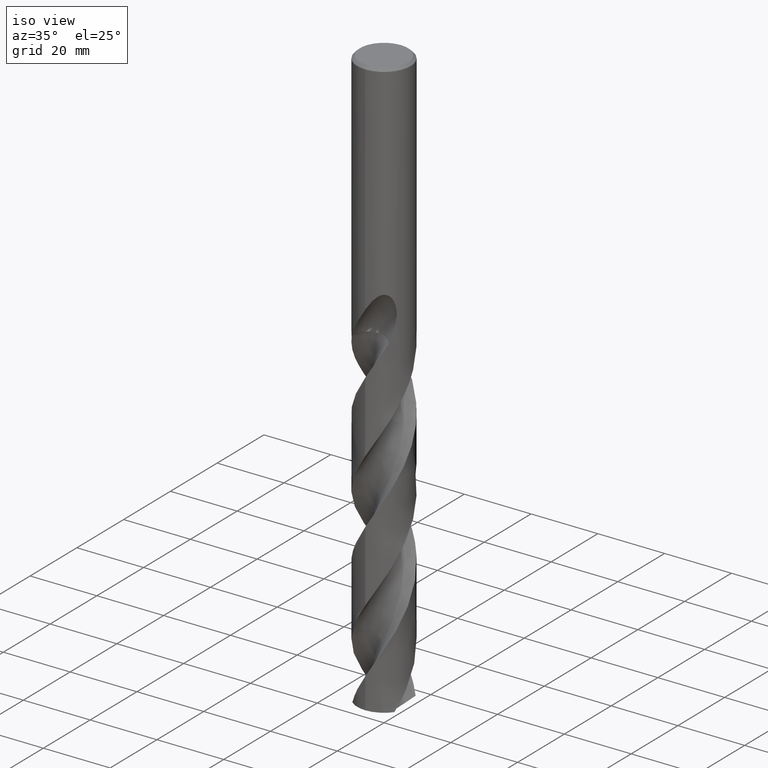
[diagram: clean part render]
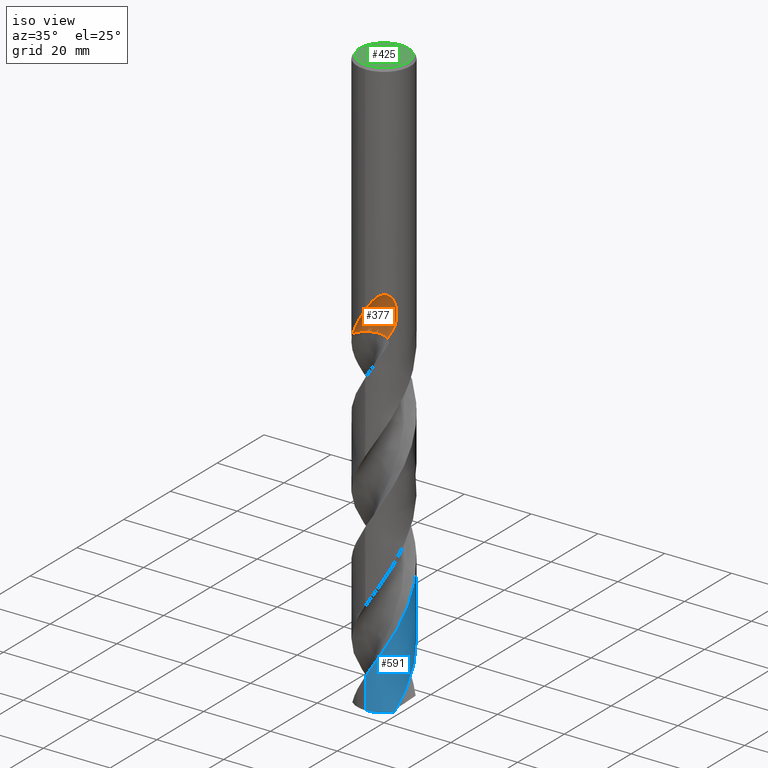
[diagram: same view with three faces highlighted in distinct colors, each labeled with its STEP entity id]
A machine part, iso view with three faces highlighted in distinct colors.
Their STEP definitions:

[orange] entity #377 — the highlighted face is a SurfaceOfRevolution surface.
#327=VERTEX_POINT('',#809);
#377=ADVANCED_FACE('',(#863),#864,.F.);
#511=EDGE_CURVE('',#593,#327,#1013,.T.);
#537=EDGE_CURVE('',#689,#713,#1041,.T.);
#593=VERTEX_POINT('',#1102);
#677=EDGE_CURVE('',#689,#327,#1191,.T.);
#685=EDGE_CURVE('',#713,#593,#1199,.T.);
#689=VERTEX_POINT('',#1203);
#713=VERTEX_POINT('',#1229);
#809=CARTESIAN_POINT('',(6.50913730642338,-4.65092802848285,-69.9243581719634));
#863=FACE_OUTER_BOUND('',#3213,.T.);
#864=SURFACE_OF_REVOLUTION('',#3214,#3215);
#1013=B_SPLINE_CURVE_WITH_KNOTS('',3,(#5379,#5380,#5381,#5382,#5383,#5384,#5385,#5386,#5387,#5388,#5389,#5390,#5391,#5392,#5393,#5394,#5395,#5396,#5397,#5398,#5399,#5400,#5401,#5402,#5403,#5404,#5405,#5406,#5407,#5408),.UNSPECIFIED.,.F.,.F.,(4,2,2,2,2,2,2,2,2,2,2,2,2,2,4),(0.0,3.91590281283359,6.05573409657608,7.99442629748274,10.2470388063598,12.9526719938617,15.2954417411845,16.357947869906,17.1345550297631,17.8694819377975,18.8018247316855,20.1659176186951,22.1051095659883,23.3737877571312,24.7070714168488),.UNSPECIFIED.);
#1041=B_SPLINE_CURVE_WITH_KNOTS('',3,(#5759,#5760,#5761,#5762,#5763,#5764,#5765,#5766,#5767,#5768,#5769,#5770,#5771,#5772,#5773,#5774),.UNSPECIFIED.,.F.,.F.,(4,2,2,2,2,2,2,4),(0.0,2.0836895667088,4.16726819539403,6.25068154252341,8.33394110976862,10.4171212506066,11.6681682764238,12.9192366316779),.UNSPECIFIED.);
#1102=CARTESIAN_POINT('',(2.43587506935927E-012,-7.99999999999999,-65.8011934870331));
#1191=CIRCLE('',#6832,34.7620791855138);
#1199=B_SPLINE_CURVE_WITH_KNOTS('',3,(#7005,#7006,#7007,#7008,#7009,#7010,#7011,#7012,#7013,#7014,#7015,#7016,#7017,#7018,#7019,#7020,#7021,#7022,#7023,#7024,#7025,#7026,#7027,#7028,#7029,#7030,#7031,#7032,#7033,#7034),.UNSPECIFIED.,.F.,.F.,(4,2,2,2,2,2,2,2,2,2,2,2,2,2,4),(0.0,3.91590281283359,6.05573409657608,7.99442629748274,10.2470388063598,12.9526719938617,15.2954417411845,16.357947869906,17.1345550297631,17.8694819377975,18.8018247316855,20.1659176186951,22.1051095659883,23.3737877571312,24.7070714168488),.UNSPECIFIED.);
#1203=CARTESIAN_POINT('',(3.77436116390051,-3.96243725254428,-74.3));
#1229=CARTESIAN_POINT('',(-5.09533746900463,-6.1674578293619,-74.3));
#3213=EDGE_LOOP('',(#7437,#7438,#7439,#7440));
#3214=(B_SPLINE_CURVE(3,(#7442,#7443,#7444,#7445,#7446,#7447,#7448,#7449,#7450),.UNSPECIFIED.,.F.,.F.)B_SPLINE_CURVE_WITH_KNOTS((4,1,3,1,4),(-2.85636795280894,-2.55358031761993,-2.25079268243092,-1.94800504724191,-1.64521741205289),.UNSPECIFIED.)RATIONAL_B_SPLINE_CURVE((1.09168035202335,1.03056011734112,0.969439882658882,1.03056011734112,1.09168035202335,1.03056011734112,0.969439882658882,1.03056011734112,1.09168035202335))BOUNDED_CURVE()REPRESENTATION_ITEM('')GEOMETRIC_REPRESENTATION_ITEM()CURVE());
#3215=AXIS1_PLACEMENT('',#7457,#7458);
#5379=CARTESIAN_POINT('',(-5.09533746900463,-6.1674578293619,-74.3));
#5380=CARTESIAN_POINT('',(-4.56781300680808,-6.60328004856703,-73.1884301763902));
#5381=CARTESIAN_POINT('',(-3.96147717069402,-6.99059414093797,-72.1519049479666));
#5382=CARTESIAN_POINT('',(-2.90421070218767,-7.46547307658953,-70.4201014509066));
#5383=CARTESIAN_POINT('',(-2.52357567905521,-7.60214076383474,-69.8104798396806));
#5384=CARTESIAN_POINT('',(-1.78663426127276,-7.80641246493782,-68.6302760887285));
#5385=CARTESIAN_POINT('',(-1.43360700960122,-7.8785812952792,-68.0651771779032));
#5386=CARTESIAN_POINT('',(-0.66939761638888,-7.98271463327913,-66.8471682891758));
#5387=CARTESIAN_POINT('',(-0.251818952600852,-8.0071311229172,-66.1847063849591));
#5388=CARTESIAN_POINT('',(0.675477540706896,-7.98748343496672,-64.767614962988));
#5389=CARTESIAN_POINT('',(1.22529818168479,-7.92706306859737,-63.9612757067075));
#5390=CARTESIAN_POINT('',(2.28510817287336,-7.68329109102345,-62.6324744414043));
#5391=CARTESIAN_POINT('',(2.87106821308121,-7.49776193190795,-61.9845420802108));
#5392=CARTESIAN_POINT('',(3.75814303339007,-7.06900746724023,-61.377511312445));
#5393=CARTESIAN_POINT('',(4.0519265721904,-6.90705827610741,-61.2274173351229));
#5394=CARTESIAN_POINT('',(4.56671142469977,-6.57360084481971,-61.112136804995));
#5395=CARTESIAN_POINT('',(4.77785754992476,-6.42173920744754,-61.1100020707401));
#5396=CARTESIAN_POINT('',(5.17113183649068,-6.1089352431671,-61.2109696484492));
#5397=CARTESIAN_POINT('',(5.34313168535859,-5.95785593701404,-61.3056222911061));
#5398=CARTESIAN_POINT('',(5.69315463373453,-5.62677348313845,-61.601767405673));
#5399=CARTESIAN_POINT('',(5.85509159657868,-5.45519699647588,-61.8204157500394));
#5400=CARTESIAN_POINT('',(6.18679112368952,-5.08054745049944,-62.4191394066163));
#5401=CARTESIAN_POINT('',(6.34533440279514,-4.87652583157165,-62.8632166951698));
#5402=CARTESIAN_POINT('',(6.64345502896667,-4.46687448665409,-64.1056738234784));
#5403=CARTESIAN_POINT('',(6.75122285237993,-4.29239836170946,-64.990528653663));
#5404=CARTESIAN_POINT('',(6.80451842235327,-4.20714986738576,-66.6280143733146));
#5405=CARTESIAN_POINT('',(6.79196220113431,-4.22796907317364,-67.2800385825896));
#5406=CARTESIAN_POINT('',(6.70335655751583,-4.36716841121042,-68.6033173532593));
#5407=CARTESIAN_POINT('',(6.62425545031343,-4.48981613845744,-69.2695915934735));
#5408=CARTESIAN_POINT('',(6.50913730642338,-4.65092802848284,-69.9243581719634));
#5759=CARTESIAN_POINT('',(3.77436116390052,-3.96243725254428,-74.3));
#5760=CARTESIAN_POINT('',(3.28325834864442,-3.47127938767134,-74.3));
#5761=CARTESIAN_POINT('',(2.70091602511993,-3.0807383603764,-74.3));
#5762=CARTESIAN_POINT('',(1.419343980209,-2.54488406185063,-74.3));
#5763=CARTESIAN_POINT('',(0.732370640255498,-2.40467993224093,-74.3));
#5764=CARTESIAN_POINT('',(-0.656593623707864,-2.3955077267827,-74.3));
#5765=CARTESIAN_POINT('',(-1.34530366756504,-2.52660606080058,-74.3));
#5766=CARTESIAN_POINT('',(-2.63365296637478,-3.04541370223928,-74.3));
#5767=CARTESIAN_POINT('',(-3.22097847844025,-3.42814303030848,-74.3));
#5768=CARTESIAN_POINT('',(-4.21584059978022,-4.39718172107111,-74.3));
#5769=CARTESIAN_POINT('',(-4.61386873028476,-4.97421506276283,-74.3));
#5770=CARTESIAN_POINT('',(-5.05599600915316,-5.99389366862002,-74.3));
#5771=CARTESIAN_POINT('',(-5.17643840928698,-6.39463200964358,-74.3));
#5772=CARTESIAN_POINT('',(-5.32148778578125,-7.21595781968526,-74.3));
#5773=CARTESIAN_POINT('',(-5.34559358198902,-7.63371686652313,-74.3));
#5774=CARTESIAN_POINT('',(-5.32078838992873,-8.05,-74.3));
#6832=AXIS2_PLACEMENT_3D('',#7820,#7821,#7822);
#7005=CARTESIAN_POINT('',(-5.09533746900463,-6.1674578293619,-74.3));
#7006=CARTESIAN_POINT('',(-4.56781300680808,-6.60328004856703,-73.1884301763902));
#7007=CARTESIAN_POINT('',(-3.96147717069402,-6.99059414093797,-72.1519049479666));
#7008=CARTESIAN_POINT('',(-2.90421070218767,-7.46547307658953,-70.4201014509066));
#7009=CARTESIAN_POINT('',(-2.52357567905521,-7.60214076383474,-69.8104798396806));
#7010=CARTESIAN_POINT('',(-1.78663426127276,-7.80641246493782,-68.6302760887285));
#7011=CARTESIAN_POINT('',(-1.43360700960122,-7.8785812952792,-68.0651771779032));
#7012=CARTESIAN_POINT('',(-0.66939761638888,-7.98271463327913,-66.8471682891758));
#7013=CARTESIAN_POINT('',(-0.251818952600852,-8.0071311229172,-66.1847063849591));
#7014=CARTESIAN_POINT('',(0.675477540706896,-7.98748343496672,-64.767614962988));
#7015=CARTESIAN_POINT('',(1.22529818168479,-7.92706306859737,-63.9612757067075));
#7016=CARTESIAN_POINT('',(2.28510817287336,-7.68329109102345,-62.6324744414043));
#7017=CARTESIAN_POINT('',(2.87106821308121,-7.49776193190795,-61.9845420802108));
#7018=CARTESIAN_POINT('',(3.75814303339007,-7.06900746724023,-61.377511312445));
#7019=CARTESIAN_POINT('',(4.0519265721904,-6.90705827610741,-61.2274173351229));
#7020=CARTESIAN_POINT('',(4.56671142469977,-6.57360084481971,-61.112136804995));
#7021=CARTESIAN_POINT('',(4.77785754992476,-6.42173920744754,-61.1100020707401));
#7022=CARTESIAN_POINT('',(5.17113183649068,-6.1089352431671,-61.2109696484492));
#7023=CARTESIAN_POINT('',(5.34313168535859,-5.95785593701404,-61.3056222911061));
#7024=CARTESIAN_POINT('',(5.69315463373453,-5.62677348313845,-61.601767405673));
#7025=CARTESIAN_POINT('',(5.85509159657868,-5.45519699647588,-61.8204157500394));
#7026=CARTESIAN_POINT('',(6.18679112368952,-5.08054745049944,-62.4191394066163));
#7027=CARTESIAN_POINT('',(6.34533440279514,-4.87652583157165,-62.8632166951698));
#7028=CARTESIAN_POINT('',(6.64345502896667,-4.46687448665409,-64.1056738234784));
#7029=CARTESIAN_POINT('',(6.75122285237993,-4.29239836170946,-64.990528653663));
#7030=CARTESIAN_POINT('',(6.80451842235327,-4.20714986738576,-66.6280143733146));
#7031=CARTESIAN_POINT('',(6.79196220113431,-4.22796907317364,-67.2800385825896));
#7032=CARTESIAN_POINT('',(6.70335655751583,-4.36716841121042,-68.6033173532593));
#7033=CARTESIAN_POINT('',(6.62425545031343,-4.48981613845744,-69.2695915934735));
#7034=CARTESIAN_POINT('',(6.50913730642338,-4.65092802848284,-69.9243581719634));
#7437=ORIENTED_EDGE('',*,*,#537,.F.);
#7438=ORIENTED_EDGE('',*,*,#677,.T.);
#7439=ORIENTED_EDGE('',*,*,#511,.F.);
#7440=ORIENTED_EDGE('',*,*,#685,.F.);
#7442=CARTESIAN_POINT('',(3.77123616390052,-3.96209716609948,-74.305));
#7443=CARTESIAN_POINT('',(3.0325590969274,-3.22341105216108,-74.305));
#7444=CARTESIAN_POINT('',(1.11178561019235,-2.17380832457056,-74.305));
#7445=CARTESIAN_POINT('',(-1.06492212838375,-2.40398237595941,-74.305));
#7446=CARTESIAN_POINT('',(-2.03087531204552,-2.80177054970407,-74.305));
#7447=CARTESIAN_POINT('',(-2.99682849570729,-3.19955872344874,-74.305));
#7448=CARTESIAN_POINT('',(-4.70439138833317,-4.5689621120954,-74.305));
#7449=CARTESIAN_POINT('',(-5.32902609804488,-6.66678673596966,-74.305));
#7450=CARTESIAN_POINT('',(-5.33331154753289,-7.71143146941741,-74.305));
#7457=CARTESIAN_POINT('',(2.71190016280487,-38.66666665,-75.999937601753));
#7458=DIRECTION('',(-0.847998304005088,0.0,0.52999894000318));
#7820=CARTESIAN_POINT('',(2.71190016280487,-38.66666665,-75.999937601753));
#7821=DIRECTION('',(0.847998304005088,0.0,-0.52999894000318));
#7822=DIRECTION('',(0.0535598123557514,0.994880693119272,0.0856956997692023));

[blue] entity #591 — the highlighted conical surface has half-angle 0 deg.
#265=VERTEX_POINT('',#741);
#283=VERTEX_POINT('',#764);
#323=EDGE_CURVE('',#557,#265,#805,.T.);
#395=VERTEX_POINT('',#883);
#455=EDGE_CURVE('',#283,#265,#950,.T.);
#519=EDGE_CURVE('',#395,#557,#1022,.T.);
#557=VERTEX_POINT('',#1063);
#591=ADVANCED_FACE('',(#1099),#1100,.T.);
#651=EDGE_CURVE('',#283,#703,#1164,.T.);
#687=EDGE_CURVE('',#395,#703,#1201,.T.);
#703=VERTEX_POINT('',#1217);
#741=CARTESIAN_POINT('',(3.02562586892003E-012,-7.99999076891851,-165.041269161609));
#764=CARTESIAN_POINT('',(5.01366598669618E-014,7.99995034341639,-124.628081171944));
#805=LINE('',#3103,#3104);
#883=CARTESIAN_POINT('',(6.4524154961979,-4.7293058966856,-174.26953873476));
#950=B_SPLINE_CURVE_WITH_KNOTS('',3,(#4583,#4584,#4585,#4586,#4587,#4588,#4589,#4590,#4591,#4592,#4593,#4594,#4595,#4596,#4597,#4598,#4599,#4600,#4601,#4602,#4603,#4604,#4605,#4606,#4607,#4608,#4609,#4610,#4611,#4612,#4613,#4614,#4615,#4616,#4617,#4618,#4619,#4620,#4621,#4622,#4623,#4624,#4625,#4626,#4627,#4628,#4629,#4630,#4631,#4632,#4633,#4634,#4635,#4636,#4637,#4638,#4639,#4640,#4641,#4642,#4643,#4644,#4645,#4646,#4647,#4648,#4649,#4650,#4651,#4652,#4653,#4654,#4655,#4656,#4657,#4658,#4659,#4660,#4661,#4662,#4663,#4664,#4665,#4666,#4667,#4668,#4669,#4670,#4671,#4672,#4673,#4674,#4675,#4676,#4677,#4678,#4679,#4680,#4681,#4682,#4683,#4684,#4685,#4686,#4687,#4688,#4689,#4690,#4691,#4692,#4693,#4694,#4695,#4696,#4697,#4698,#4699,#4700,#4701,#4702,#4703,#4704,#4705,#4706,#4707,#4708,#4709,#4710,#4711,#4712,#4713,#4714,#4715,#4716,#4717,#4718,#4719,#4720,#4721,#4722,#4723,#4724,#4725,#4726,#4727,#4728),.UNSPECIFIED.,.F.,.F.,(4,2,2,2,2,2,2,2,2,2,2,2,2,2,2,2,2,2,2,2,2,2,2,2,2,2,2,2,2,2,2,2,2,2,2,2,2,2,2,2,2,2,2,2,2,2,2,2,2,2,2,2,2,2,2,2,2,2,2,2,2,2,2,2,2,2,2,2,2,2,2,2,4),(0.0,0.396364840128986,1.6889252362145,2.00397487255824,2.17424251064517,2.30588410762312,2.47757412513264,2.78553548546604,2.98803412804092,3.32603751689064,4.35719727056097,4.93410546594319,5.50924568199279,6.1194794832249,9.23315649832654,9.65617969121381,13.7257564065784,16.4285237405866,17.7895942104936,19.1452457843884,21.5964018847394,22.9475115698178,25.4669970790595,26.8121031105491,29.492633314876,30.7428072521989,33.4326285693044,34.1393211857721,36.6636143412875,38.0085997697514,40.6893611332032,41.9262379937883,44.6148549862256,45.3214705404702,47.8135670745552,49.1604985847409,51.8394495762727,53.1019833855767,55.7894977087622,56.4960156231603,58.9435575644471,60.293020373924,62.8899113667854,64.2292189231259,66.914063538105,67.4941765960054,69.6317616897498,70.3122858422147,71.6538645473942,74.3369548942472,74.9301807130068,77.0689315097165,77.7493478540563,79.0910113903947,81.7723056672906,82.9763852442322,85.6648481548377,86.3710840494555,88.9125017042148,90.2553225908161,92.9358036975654,94.1469183034304,96.8340297205254,97.5401780187552,99.7134459788152,101.63431864337,103.314570563173,106.263970110825,107.371672785573,109.308050335833,110.762400398034,112.946745369295,115.130519048277),.UNSPECIFIED.);
#1022=CIRCLE('',#5424,8.0);
#1063=CARTESIAN_POINT('',(9.80343973248276E-016,-8.0,-174.26953873476));
#1099=FACE_OUTER_BOUND('',#5949,.T.);
#1100=CONICAL_SURFACE('',#5950,7.99995,1.00030470546688E-006);
#1164=LINE('',#6604,#6605);
#1201=B_SPLINE_CURVE_WITH_KNOTS('',3,(#7037,#7038,#7039,#7040,#7041,#7042,#7043,#7044,#7045,#7046,#7047,#7048,#7049,#7050,#7051,#7052,#7053,#7054,#7055,#7056,#7057,#7058,#7059,#7060,#7061,#7062,#7063,#7064,#7065,#7066,#7067,#7068,#7069,#7070,#7071,#7072,#7073,#7074,#7075,#7076,#7077,#7078,#7079,#7080,#7081,#7082,#7083,#7084,#7085,#7086,#7087,#7088,#7089,#7090,#7091,#7092,#7093,#7094,#7095,#7096,#7097,#7098,#7099,#7100,#7101,#7102,#7103,#7104,#7105,#7106,#7107,#7108,#7109,#7110,#7111,#7112,#7113,#7114,#7115,#7116,#7117,#7118,#7119,#7120,#7121,#7122,#7123,#7124,#7125,#7126,#7127,#7128,#7129,#7130,#7131,#7132,#7133,#7134,#7135,#7136,#7137,#7138,#7139,#7140,#7141,#7142,#7143,#7144,#7145,#7146,#7147,#7148,#7149,#7150,#7151,#7152,#7153,#7154,#7155,#7156,#7157,#7158,#7159,#7160,#7161,#7162,#7163,#7164,#7165,#7166,#7167,#7168,#7169,#7170,#7171,#7172,#7173,#7174,#7175,#7176,#7177,#7178,#7179,#7180,#7181,#7182,#7183,#7184,#7185,#7186,#7187,#7188,#7189,#7190,#7191,#7192,#7193,#7194,#7195,#7196),.UNSPECIFIED.,.F.,.F.,(4,2,2,2,2,2,2,2,2,2,2,2,2,2,2,2,2,2,2,2,2,2,2,2,2,2,2,2,2,2,2,2,2,2,2,2,2,2,2,2,2,2,2,2,2,2,2,2,2,2,2,2,2,2,2,2,2,2,2,2,2,2,2,2,2,2,2,2,2,2,2,2,2,2,2,2,2,2,2,4),(0.0,1.79288026446482,4.33577615326237,5.72819630634083,6.59756452608658,7.49901169922463,10.1356059848104,11.5219639803182,13.4736717277284,16.2559084691059,17.6007519430154,18.9903062756799,22.1697415352793,22.526246318934,24.3454041609088,25.365049139052,26.7540921899424,28.6614135010113,30.5707827137037,32.4791854809951,33.4350862038033,34.2495951726714,37.6123831448873,37.6716397426594,39.8011765899904,40.8291512252595,42.0035791764091,43.9100209147848,44.8651602538496,45.8149906842246,47.7212056420198,48.6762287001318,49.6259598567216,51.5318772274883,52.4868720640669,53.4367494361388,55.3425873922453,56.2975928746214,57.2476155441298,58.923862952868,59.9671249842955,61.1093899839554,64.1261550862519,65.010172058349,66.6825242809709,67.7823406224752,68.6575876963279,71.4388406276834,72.5567140168389,74.4626140574003,75.4175267509742,76.3672565942204,78.2729678381065,79.2278974660539,80.1778023662613,82.0835128202812,83.0385036884594,83.9886134916779,85.8945131401931,86.8495833045001,87.7998145123193,91.0849072840745,91.2897559114561,94.0855805715642,96.334970874958,98.0728292419665,99.4717153797586,101.485604902634,103.282267587602,106.642861963175,111.607680777872,113.019764300618,113.987173385473,114.544614757626,114.991022611521,115.250860049801,115.491134439478,115.806649395218,116.541432665493,117.91297923462),.UNSPECIFIED.);
#1217=CARTESIAN_POINT('',(2.75051047590584E-010,7.99997164817969,-145.926354754771));
#3103=CARTESIAN_POINT('',(9.80337850216507E-016,-7.99995,-124.28476936738));
#3104=VECTOR('',#7371,1.0);
#4583=CARTESIAN_POINT('',(5.5605480230186,-5.75140902507614,-74.305));
#4584=CARTESIAN_POINT('',(5.51284781696838,-5.79752645466486,-74.4192540754287));
#4585=CARTESIAN_POINT('',(5.46442224983083,-5.84319943962831,-74.5335302035747));
#4586=CARTESIAN_POINT('',(5.25433974451992,-6.03639264039253,-75.0199796965601));
#4587=CARTESIAN_POINT('',(5.08874975570723,-6.17699683276603,-75.3798626272565));
#4588=CARTESIAN_POINT('',(4.86425763582548,-6.35141922652426,-75.8356996325223));
#4589=CARTESIAN_POINT('',(4.81973794406746,-6.38527475501142,-75.9247459398642));
#4590=CARTESIAN_POINT('',(4.75002024890972,-6.43713174645482,-76.0622744008603));
#4591=CARTESIAN_POINT('',(4.72541528117367,-6.45521618859355,-76.1104549378464));
#4592=CARTESIAN_POINT('',(4.68150528986153,-6.48710246956705,-76.1958665082032));
#4593=CARTESIAN_POINT('',(4.66227706748511,-6.50093578208313,-76.2330769950212));
#4594=CARTESIAN_POINT('',(4.61777154838819,-6.53265452485234,-76.3188043610663));
#4595=CARTESIAN_POINT('',(4.59245340447115,-6.55047827936271,-76.3672787300193));
#4596=CARTESIAN_POINT('',(4.52135313332328,-6.59991610353792,-76.5027086082579));
#4597=CARTESIAN_POINT('',(4.47536015257851,-6.63119005062669,-76.5895117698738));
#4598=CARTESIAN_POINT('',(4.3985891985828,-6.68222937884893,-76.733539864156));
#4599=CARTESIAN_POINT('',(4.36787769524598,-6.70234761701732,-76.790965548924));
#4600=CARTESIAN_POINT('',(4.28457805593145,-6.75608437080903,-76.9466128813834));
#4601=CARTESIAN_POINT('',(4.23226543237892,-6.78897383571983,-77.0441212709871));
#4602=CARTESIAN_POINT('',(4.01956440740735,-6.91930986925541,-77.4394445537935));
#4603=CARTESIAN_POINT('',(3.85718781478951,-7.0110540560221,-77.7387367659995));
#4604=CARTESIAN_POINT('',(3.60090066768687,-7.14441880249601,-78.2048273198961));
#4605=CARTESIAN_POINT('',(3.50810089754314,-7.19043848087967,-78.3723028829909));
#4606=CARTESIAN_POINT('',(3.32118983148065,-7.27865477612401,-78.7064922379283));
#4607=CARTESIAN_POINT('',(3.22695762276601,-7.32092205065111,-78.8734326570244));
#4608=CARTESIAN_POINT('',(3.03094611232734,-7.4043142611879,-79.2171311239335));
#4609=CARTESIAN_POINT('',(2.92908988936161,-7.44519826421327,-79.393816356564));
#4610=CARTESIAN_POINT('',(2.30206648085502,-7.68199537706052,-80.4723293104213));
#4611=CARTESIAN_POINT('',(1.75848792437019,-7.82434290422219,-81.367452135331));
#4612=CARTESIAN_POINT('',(1.12914723909622,-7.92018647522073,-82.3919911705235));
#4613=CARTESIAN_POINT('',(1.05372806233417,-7.93057260733814,-82.5145792234645));
#4614=CARTESIAN_POINT('',(0.251454128115897,-8.02941334056035,-83.8160794056571));
#4615=CARTESIAN_POINT('',(-0.484512858078041,-8.01879677941626,-84.9877678337816));
#4616=CARTESIAN_POINT('',(-1.69030891788395,-7.83443960954508,-86.9487891451228));
#4617=CARTESIAN_POINT('',(-2.16370713981368,-7.7171083345384,-87.7297675974405));
#4618=CARTESIAN_POINT('',(-2.85488650297844,-7.47718544382351,-88.9067011945221));
#4619=CARTESIAN_POINT('',(-3.0826088844176,-7.38622062655594,-89.3006715272075));
#4620=CARTESIAN_POINT('',(-3.52817776700053,-7.18402598595375,-90.0873465426665));
#4621=CARTESIAN_POINT('',(-3.74576698205561,-7.07301153767781,-90.4794745243644));
#4622=CARTESIAN_POINT('',(-4.34154936036629,-6.7338312695149,-91.5818533628831));
#4623=CARTESIAN_POINT('',(-4.70646986889829,-6.48403782378337,-92.2908607026262));
#4624=CARTESIAN_POINT('',(-5.23769844689276,-6.05181323336589,-93.3919043321043));
#4625=CARTESIAN_POINT('',(-5.41933688921216,-5.88971122652719,-93.7827770976487));
#4626=CARTESIAN_POINT('',(-5.91767517242136,-5.40237934262374,-94.903724051133));
#4627=CARTESIAN_POINT('',(-6.21453816673239,-5.05808563354568,-95.6324176606162));
#4628=CARTESIAN_POINT('',(-6.62269361859108,-4.49415142410318,-96.7515383285642));
#4629=CARTESIAN_POINT('',(-6.75574224446968,-4.29154855282225,-97.1407012436537));
#4630=CARTESIAN_POINT('',(-7.12576772789545,-3.66813834536784,-98.3066212452938));
#4631=CARTESIAN_POINT('',(-7.33412309759147,-3.23150322083229,-99.0816614550725));
#4632=CARTESIAN_POINT('',(-7.58007399176533,-2.56749178209516,-100.219969774556));
#4633=CARTESIAN_POINT('',(-7.64933128476196,-2.35313315147344,-100.581807188275));
#4634=CARTESIAN_POINT('',(-7.83879006861508,-1.66938191454745,-101.722999076193));
#4635=CARTESIAN_POINT('',(-7.92549835542677,-1.19170069922153,-102.50059024185));
#4636=CARTESIAN_POINT('',(-7.97973115668838,-0.582208500664761,-103.484218447745));
#4637=CARTESIAN_POINT('',(-7.9879844851845,-0.455164327791988,-103.688826577471));
#4638=CARTESIAN_POINT('',(-8.01184385714521,0.126270569339463,-104.624654554951));
#4639=CARTESIAN_POINT('',(-7.99172847112145,0.581366115770571,-105.354832592783));
#4640=CARTESIAN_POINT('',(-7.90177723547586,1.2726132605373,-106.475459456891));
#4641=CARTESIAN_POINT('',(-7.8596144220525,1.51131199756138,-106.8646444414));
#4642=CARTESIAN_POINT('',(-7.70121331059336,2.21886804416057,-108.030748211982));
#4643=CARTESIAN_POINT('',(-7.55327360215441,2.67960717701273,-108.805940574425));
#4644=CARTESIAN_POINT('',(-7.27761828316181,3.32939999848544,-109.940606677778));
#4645=CARTESIAN_POINT('',(-7.18207184295146,3.5307853675632,-110.29864225695));
#4646=CARTESIAN_POINT('',(-6.8526187977384,4.15633135276245,-111.435780072029));
#4647=CARTESIAN_POINT('',(-6.58848862820094,4.56349606711205,-112.213139489782));
#4648=CARTESIAN_POINT('',(-6.21040242567926,5.04441609626446,-113.19652833141));
#4649=CARTESIAN_POINT('',(-6.12934982435212,5.14259638313354,-113.401138736755));
#4650=CARTESIAN_POINT('',(-5.75203253401615,5.57805311427762,-114.327743165264));
#4651=CARTESIAN_POINT('',(-5.42998738607319,5.89202074901117,-115.048750438669));
#4652=CARTESIAN_POINT('',(-4.89587055501491,6.33154156037681,-116.160771131014));
#4653=CARTESIAN_POINT('',(-4.7015820309396,6.47711908229234,-116.550561549495));
#4654=CARTESIAN_POINT('',(-4.10205141505803,6.885139449149,-117.7168513541));
#4655=CARTESIAN_POINT('',(-3.67927918788621,7.12004537197204,-118.491645678848));
#4656=CARTESIAN_POINT('',(-3.02981205834922,7.40750445704382,-119.633369080842));
#4657=CARTESIAN_POINT('',(-2.81798351480715,7.4906488816237,-119.998858807144));
#4658=CARTESIAN_POINT('',(-2.14517519295429,7.7221583518571,-121.143258987747));
#4659=CARTESIAN_POINT('',(-1.67396263265294,7.83782843091579,-121.920415157332));
#4660=CARTESIAN_POINT('',(-1.06921304298647,7.92919736131189,-122.903589823445));
#4661=CARTESIAN_POINT('',(-0.942909582510771,7.94520634388572,-123.108195801619));
#4662=CARTESIAN_POINT('',(-0.377651220927743,8.00318710610268,-124.021989447264));
#4663=CARTESIAN_POINT('',(0.0640184470550656,8.01184306939127,-124.730263134268));
#4664=CARTESIAN_POINT('',(0.746875211317738,7.9687222802964,-125.830272137334));
#4665=CARTESIAN_POINT('',(0.988707561004293,7.94234201481639,-126.22083695269));
#4666=CARTESIAN_POINT('',(1.6912518719529,7.83312266096925,-127.364236075314));
#4667=CARTESIAN_POINT('',(2.14644469488083,7.72082023332259,-128.115544046031));
#4668=CARTESIAN_POINT('',(2.81763365541447,7.4912267312063,-129.25590420956));
#4669=CARTESIAN_POINT('',(3.04231500267936,7.40282554884442,-129.643606310392));
#4670=CARTESIAN_POINT('',(3.70427549320407,7.10715242699059,-130.809628965931));
#4671=CARTESIAN_POINT('',(4.12721412593053,6.8701941549787,-131.586159241167));
#4672=CARTESIAN_POINT('',(4.61241786661689,6.53726738259335,-132.532077530203));
#4673=CARTESIAN_POINT('',(4.69745039651734,6.47643593793807,-132.700097068316));
#4674=CARTESIAN_POINT('',(5.09009335058722,6.18374259358743,-133.487549548376));
#4675=CARTESIAN_POINT('',(5.38190072194309,5.93151575097637,-134.106528270316));
#4676=CARTESIAN_POINT('',(5.741145471588,5.57258086981461,-134.923107978253));
#4677=CARTESIAN_POINT('',(5.82589923303782,5.48391420354618,-135.120261264495));
#4678=CARTESIAN_POINT('',(6.07159797823741,5.21474307341315,-135.706152211746));
#4679=CARTESIAN_POINT('',(6.22640081232779,5.02889172350294,-136.094539688829));
#4680=CARTESIAN_POINT('',(6.66479228575774,4.45125374413043,-137.260832954119));
#4681=CARTESIAN_POINT('',(6.92160413993277,4.04038437485214,-138.036966625968));
#4682=CARTESIAN_POINT('',(7.18800028228998,3.51333470847126,-138.986274864805));
#4683=CARTESIAN_POINT('',(7.23431236854887,3.4169566793859,-139.158107956708));
#4684=CARTESIAN_POINT('',(7.4386257260728,2.96898483810437,-139.949767076565));
#4685=CARTESIAN_POINT('',(7.5730222944281,2.60717619140266,-140.569137020159));
#4686=CARTESIAN_POINT('',(7.71510182381443,2.11936662666761,-141.386096051747));
#4687=CARTESIAN_POINT('',(7.74668438171994,2.00084983907883,-141.583235710679));
#4688=CARTESIAN_POINT('',(7.83241390424733,1.64659163509505,-142.16917257646));
#4689=CARTESIAN_POINT('',(7.87859877870559,1.40912173799898,-142.557612048814));
#4690=CARTESIAN_POINT('',(7.98461720908134,0.691987258331606,-143.723518128525));
#4691=CARTESIAN_POINT('',(8.01184546419075,0.208503453864727,-144.499233248799));
#4692=CARTESIAN_POINT('',(7.9878097196188,-0.491476346721196,-145.625132644854));
#4693=CARTESIAN_POINT('',(7.97153752933594,-0.707963872288195,-145.973879043575));
#4694=CARTESIAN_POINT('',(7.89056936813278,-1.40469681861234,-147.10205001938));
#4695=CARTESIAN_POINT('',(7.79103883716583,-1.87994158656925,-147.879740676104));
#4696=CARTESIAN_POINT('',(7.61178340118206,-2.46506708810464,-148.86347401194));
#4697=CARTESIAN_POINT('',(7.5715966161684,-2.58586956347658,-149.06808379284));
#4698=CARTESIAN_POINT('',(7.37364498018302,-3.13667880129903,-150.009343821975));
#4699=CARTESIAN_POINT('',(7.18198338141928,-3.55367972167441,-150.744919600866));
#4700=CARTESIAN_POINT('',(6.83607032648313,-4.16249735537738,-151.870596524034));
#4701=CARTESIAN_POINT('',(6.7070130662501,-4.36740094017781,-152.259412846842));
#4702=CARTESIAN_POINT('',(6.29315626963837,-4.96278360783072,-153.425556821293));
#4703=CARTESIAN_POINT('',(5.98201035792477,-5.33373878632395,-154.201137482872));
#4704=CARTESIAN_POINT('',(5.48436049449069,-5.82830706451312,-155.328976810007));
#4705=CARTESIAN_POINT('',(5.32328057782371,-5.97578672607244,-155.679792917863));
#4706=CARTESIAN_POINT('',(4.78614748676332,-6.42861042371425,-156.809750682955));
#4707=CARTESIAN_POINT('',(4.38823424928099,-6.70655226690953,-157.58716541964));
#4708=CARTESIAN_POINT('',(3.85699027048366,-7.00996317029255,-158.570608754269));
#4709=CARTESIAN_POINT('',(3.74496327454284,-7.07044569421142,-158.77521523364));
#4710=CARTESIAN_POINT('',(3.28251739544618,-7.30604482671391,-159.609858192409));
#4711=CARTESIAN_POINT('',(2.92085396637818,-7.45800851117147,-160.239276742325));
#4712=CARTESIAN_POINT('',(2.22124957327945,-7.69322844698944,-161.425978376607));
#4713=CARTESIAN_POINT('',(1.88623634522121,-7.78214485380322,-161.981867194035));
#4714=CARTESIAN_POINT('',(1.24942519254866,-7.90762105673682,-163.025780819697));
#4715=CARTESIAN_POINT('',(0.94917386045299,-7.94925494723915,-163.512569106863));
#4716=CARTESIAN_POINT('',(0.117279292678102,-8.01678344563845,-164.854529831797));
#4717=CARTESIAN_POINT('',(-0.415618692406361,-8.00685524506512,-165.707219221183));
#4718=CARTESIAN_POINT('',(-1.14177831659602,-7.92061148620873,-166.883310446223));
#4719=CARTESIAN_POINT('',(-1.33911733710164,-7.88964744240436,-167.204288767363));
#4720=CARTESIAN_POINT('',(-1.87774868410449,-7.78433325487827,-168.086622600088));
#4721=CARTESIAN_POINT('',(-2.21555942663392,-7.69499838581465,-168.647073025636));
#4722=CARTESIAN_POINT('',(-2.7948804887419,-7.50048484491491,-169.630046881607));
#4723=CARTESIAN_POINT('',(-3.0391377982519,-7.40488391351117,-170.051468585824));
#4724=CARTESIAN_POINT('',(-3.63746322022352,-7.13609538806978,-171.106252831967));
#4725=CARTESIAN_POINT('',(-3.9842468699721,-6.94843782060134,-171.738379047427));
#4726=CARTESIAN_POINT('',(-4.64726430698011,-6.52364046377101,-173.004589109565));
#4727=CARTESIAN_POINT('',(-4.96267507143259,-6.28704656085648,-173.636631399469));
#4728=CARTESIAN_POINT('',(-5.25943870811467,-6.02812611642998,-174.26953873476));
#5424=AXIS2_PLACEMENT_3D('',#7657,#7658,#7659);
#5949=EDGE_LOOP('',(#7735,#7736,#7737,#7738,#7739));
#5950=AXIS2_PLACEMENT_3D('',#7740,#7741,#7742);
#6604=CARTESIAN_POINT('',(-9.79020069835758E-016,7.99995,-124.28476936738));
#6605=VECTOR('',#7788,1.0);
#7037=CARTESIAN_POINT('',(6.45241549619791,-4.72930589668565,-174.26953873476));
#7038=CARTESIAN_POINT('',(6.63857040357277,-4.47532510119558,-173.761603853047));
#7039=CARTESIAN_POINT('',(6.8098054147157,-4.21025223262982,-173.255241554948));
#7040=CARTESIAN_POINT('',(7.18541293003942,-3.54546855928934,-172.028270448186));
#7041=CARTESIAN_POINT('',(7.3725840321189,-3.13776951718899,-171.308116467744));
#7042=CARTESIAN_POINT('',(7.60796464198972,-2.48575298584364,-170.19430423493));
#7043=CARTESIAN_POINT('',(7.68059880923192,-2.25133350646564,-169.800781641257));
#7044=CARTESIAN_POINT('',(7.78090600844362,-1.8657106900357,-169.160669071662));
#7045=CARTESIAN_POINT('',(7.81517160274126,-1.71650864231046,-168.914712507805));
#7046=CARTESIAN_POINT('',(7.87617736850228,-1.41098883209324,-168.413296106576));
#7047=CARTESIAN_POINT('',(7.90258235136873,-1.2546856530675,-168.157721653563));
#7048=CARTESIAN_POINT('',(7.98796683958487,-0.638241706430072,-167.155959652305));
#7049=CARTESIAN_POINT('',(8.01154780627942,-0.174093852193531,-166.413591174912));
#7050=CARTESIAN_POINT('',(7.98591200493031,0.533479828151876,-165.274998350606));
#7051=CARTESIAN_POINT('',(7.9659395135708,0.776611241051483,-164.881870033797));
#7052=CARTESIAN_POINT('',(7.8911860973179,1.35899766365011,-163.937186256389));
#7053=CARTESIAN_POINT('',(7.82558821731564,1.69648773471373,-163.386537495225));
#7054=CARTESIAN_POINT('',(7.61421140822999,2.50270618335563,-162.047399934558));
#7055=CARTESIAN_POINT('',(7.44675485136937,2.96406201668585,-161.259134337956));
#7056=CARTESIAN_POINT('',(7.13722126476163,3.62159181694671,-160.091766932245));
#7057=CARTESIAN_POINT('',(7.02691802615233,3.83121573869665,-159.711877568876));
#7058=CARTESIAN_POINT('',(6.78414768272495,4.24675239524927,-158.938297430721));
#7059=CARTESIAN_POINT('',(6.65125449742868,4.45198777852705,-158.544468957769));
#7060=CARTESIAN_POINT('',(6.18446883088954,5.10531841619206,-157.252180646002));
#7061=CARTESIAN_POINT('',(5.8130750672972,5.5244505673397,-156.359928825716));
#7062=CARTESIAN_POINT('',(5.35506361571103,5.94364448238479,-155.359750340261));
#7063=CARTESIAN_POINT('',(5.30842447275007,5.98533586007227,-155.258893597714));
#7064=CARTESIAN_POINT('',(5.02058716689607,6.23662248357537,-154.643389858606));
#7065=CARTESIAN_POINT('',(4.76730724238694,6.43233647077298,-154.130166621594));
#7066=CARTESIAN_POINT('',(4.35436316379236,6.71352262096207,-153.327763287198));
#7067=CARTESIAN_POINT('',(4.20274389618529,6.80946049481719,-153.039752157366));
#7068=CARTESIAN_POINT('',(3.83741596928939,7.02378452583143,-152.358716053929));
#7069=CARTESIAN_POINT('',(3.62134553460582,7.13758116828931,-151.965232063185));
#7070=CARTESIAN_POINT('',(3.09708663798948,7.38376532446487,-151.033321355651));
#7071=CARTESIAN_POINT('',(2.78493849835838,7.50708260949031,-150.495695337568));
#7072=CARTESIAN_POINT('',(2.14628661123609,7.71400350613618,-149.417220389458));
#7073=CARTESIAN_POINT('',(1.82079051133839,7.79722694055922,-148.876749872076));
#7074=CARTESIAN_POINT('',(1.16209398114197,7.92221134370133,-147.798026639269));
#7075=CARTESIAN_POINT('',(0.82906447611141,7.96396749771972,-147.260390741564));
#7076=CARTESIAN_POINT('',(0.326481379012059,7.9950737722775,-146.451468820072));
#7077=CARTESIAN_POINT('',(0.158590509091981,8.00015985299957,-146.181636269411));
#7078=CARTESIAN_POINT('',(-0.152196516275726,7.99980142816082,-145.681366401171));
#7079=CARTESIAN_POINT('',(-0.295060671581018,7.99580686200736,-145.450957231726));
#7080=CARTESIAN_POINT('',(-1.02735960705596,7.95566593869396,-144.270454395847));
#7081=CARTESIAN_POINT('',(-1.61120345840046,7.85819874458692,-143.328204002946));
#7082=CARTESIAN_POINT('',(-2.18862444649488,7.69477227232791,-142.360968011742));
#7083=CARTESIAN_POINT('',(-2.19861516551384,7.69192360070847,-142.344221786099));
#7084=CARTESIAN_POINT('',(-2.56804860887271,7.58580623031154,-141.724740660033));
#7085=CARTESIAN_POINT('',(-2.92020455158624,7.45737182967978,-141.124266139039));
#7086=CARTESIAN_POINT('',(-3.42769794855482,7.23070439177669,-140.2315497865));
#7087=CARTESIAN_POINT('',(-3.5902826567562,7.15136325606105,-139.941104011631));
#7088=CARTESIAN_POINT('',(-3.93237918506159,6.96982665146879,-139.318173394084));
#7089=CARTESIAN_POINT('',(-4.11085606045653,6.86606885907819,-138.985444764968));
#7090=CARTESIAN_POINT('',(-4.56809248032453,6.57603353842339,-138.114141270224));
#7091=CARTESIAN_POINT('',(-4.83963529968491,6.37886170731337,-137.576572740307));
#7092=CARTESIAN_POINT('',(-5.2276733008952,6.05797643205947,-136.767724535751));
#7093=CARTESIAN_POINT('',(-5.35369714225268,5.9468892671354,-136.497878717839));
#7094=CARTESIAN_POINT('',(-5.59772568323816,5.71775404527058,-135.959139829983));
#7095=CARTESIAN_POINT('',(-5.71573235896941,5.59979090054291,-135.690172769895));
#7096=CARTESIAN_POINT('',(-6.05948519316606,5.23395332193264,-134.882357283254));
#7097=CARTESIAN_POINT('',(-6.27347968008232,4.97547382029623,-134.344790038042));
#7098=CARTESIAN_POINT('',(-6.56955400242234,4.56821113486299,-133.53594164103));
#7099=CARTESIAN_POINT('',(-6.66400184409139,4.42928778724622,-133.266096083962));
#7100=CARTESIAN_POINT('',(-6.84340146205469,4.14669113832112,-132.727352188016));
#7101=CARTESIAN_POINT('',(-6.92837230101266,4.00310546603566,-132.458375799744));
#7102=CARTESIAN_POINT('',(-7.17035284657392,3.563366102687,-131.650599806383));
#7103=CARTESIAN_POINT('',(-7.31335798114784,3.25984767506812,-131.11307076893));
#7104=CARTESIAN_POINT('',(-7.49889277173846,2.79180040364838,-130.304263367021));
#7105=CARTESIAN_POINT('',(-7.55584581004095,2.63375337185696,-130.0344106586));
#7106=CARTESIAN_POINT('',(-7.65938346584018,2.31538288945369,-129.495608057234));
#7107=CARTESIAN_POINT('',(-7.7060043218381,2.15514536457593,-129.226577928008));
#7108=CARTESIAN_POINT('',(-7.83107949461144,1.66903431705856,-128.418770442927));
#7109=CARTESIAN_POINT('',(-7.89414447643634,1.33949499927149,-127.881256574405));
#7110=CARTESIAN_POINT('',(-7.95750543620471,0.840001032269086,-127.072467994934));
#7111=CARTESIAN_POINT('',(-7.97338273484194,0.672743661690717,-126.802613111929));
#7112=CARTESIAN_POINT('',(-7.99452826383453,0.338573820385776,-126.26377098097));
#7113=CARTESIAN_POINT('',(-7.99985093915573,0.171741487625922,-125.994701315435));
#7114=CARTESIAN_POINT('',(-8.00012485636109,-0.289866877439169,-125.251829158131));
#7115=CARTESIAN_POINT('',(-7.9840243188077,-0.58447633786732,-124.778792688535));
#7116=CARTESIAN_POINT('',(-7.93150522957004,-1.06025439100792,-124.010007882368));
#7117=CARTESIAN_POINT('',(-7.90509086305822,-1.24192272650377,-123.71528292817));
#7118=CARTESIAN_POINT('',(-7.83677009745144,-1.62004516947558,-123.097182707537));
#7119=CARTESIAN_POINT('',(-7.79366391235406,-1.81611455032945,-122.77360773384));
#7120=CARTESIAN_POINT('',(-7.60999260115696,-2.52353313465127,-121.597479866263));
#7121=CARTESIAN_POINT('',(-7.42614859060618,-3.02194231352342,-120.750374227493));
#7122=CARTESIAN_POINT('',(-7.12658139330702,-3.63800285722068,-119.647228551899));
#7123=CARTESIAN_POINT('',(-7.05457303707329,-3.77575120863733,-119.396708613614));
#7124=CARTESIAN_POINT('',(-6.83473566280875,-4.16797548088347,-118.673250835226));
#7125=CARTESIAN_POINT('',(-6.67679657943297,-4.41658445284025,-118.201068637037));
#7126=CARTESIAN_POINT('',(-6.39267459612117,-4.81355496597753,-117.416944891457));
#7127=CARTESIAN_POINT('',(-6.27435038717883,-4.96679136553672,-117.106080229776));
#7128=CARTESIAN_POINT('',(-6.05226417273451,-5.23381918074365,-116.547119253358));
#7129=CARTESIAN_POINT('',(-5.95052234370549,-5.3492091286942,-116.299117922241));
#7130=CARTESIAN_POINT('',(-5.51160296146353,-5.81897098653421,-115.264314124052));
#7131=CARTESIAN_POINT('',(-5.14566399968475,-6.14495427009936,-114.481975675531));
#7132=CARTESIAN_POINT('',(-4.59399826251125,-6.5523171870189,-113.378854484793));
#7133=CARTESIAN_POINT('',(-4.43170300195114,-6.66315571518897,-113.06208799995));
#7134=CARTESIAN_POINT('',(-3.98202106875727,-6.94656472780707,-112.206712135888));
#7135=CARTESIAN_POINT('',(-3.68748082408203,-7.10732042566871,-111.669159644282));
#7136=CARTESIAN_POINT('',(-3.23122516046027,-7.32027425671273,-110.86032756236));
#7137=CARTESIAN_POINT('',(-3.07683196213996,-7.38649141383558,-110.590479323739));
#7138=CARTESIAN_POINT('',(-2.76517337974298,-7.50870514357335,-110.05170147692));
#7139=CARTESIAN_POINT('',(-2.60799626195851,-7.56473344132512,-109.782690972386));
#7140=CARTESIAN_POINT('',(-2.13017822715069,-7.71838747657184,-108.974903648508));
#7141=CARTESIAN_POINT('',(-1.80496641904071,-7.80086786909355,-108.437386957436));
#7142=CARTESIAN_POINT('',(-1.3101282545967,-7.89371548605374,-107.628593196454));
#7143=CARTESIAN_POINT('',(-1.14411581223084,-7.91947601920457,-107.35873849417));
#7144=CARTESIAN_POINT('',(-0.811815665341832,-7.96038644875176,-106.819907375694));
#7145=CARTESIAN_POINT('',(-0.645611556141831,-7.97558641572095,-106.55084772214));
#7146=CARTESIAN_POINT('',(-0.144584459654719,-8.00563548026964,-105.743036809182));
#7147=CARTESIAN_POINT('',(0.190916439920177,-8.00468260173843,-105.205538823325));
#7148=CARTESIAN_POINT('',(0.693315241991586,-7.97160249805944,-104.396767722904));
#7149=CARTESIAN_POINT('',(0.860534051642731,-7.95528354655499,-104.126910197508));
#7150=CARTESIAN_POINT('',(1.19262991514916,-7.91229379621423,-103.588036095495));
#7151=CARTESIAN_POINT('',(1.35743267486979,-7.88569125842518,-103.318934273198));
#7152=CARTESIAN_POINT('',(1.85023998531241,-7.79022938754765,-102.511085898269));
#7153=CARTESIAN_POINT('',(2.17498300220515,-7.7058937018397,-101.973583486301));
#7154=CARTESIAN_POINT('',(2.65339787610585,-7.54894439372577,-101.164808210514));
#7155=CARTESIAN_POINT('',(2.81131194357091,-7.49156388209337,-100.894952001542));
#7156=CARTESIAN_POINT('',(3.12230434793092,-7.36735545239433,-100.356067975736));
#7157=CARTESIAN_POINT('',(3.27532244903582,-7.30061354979392,-100.086952121999));
#7158=CARTESIAN_POINT('',(3.94786854827477,-6.98186061462769,-98.8890976257299));
#7159=CARTESIAN_POINT('',(4.44098230840601,-6.67899305089387,-97.9675338184951));
#7160=CARTESIAN_POINT('',(4.9253851033447,-6.30401756435578,-96.9803122567586));
#7161=CARTESIAN_POINT('',(4.95366853239823,-6.28181720609354,-96.9223522838315));
#7162=CARTESIAN_POINT('',(5.36647418506858,-5.95326389502734,-96.0723282279049));
#7163=CARTESIAN_POINT('',(5.722305717962,-5.61215565362534,-95.2852502850755));
#7164=CARTESIAN_POINT('',(6.30419569543827,-4.94092061289202,-93.8571819331919));
#7165=CARTESIAN_POINT('',(6.54105147389743,-4.62280897068676,-93.2192254934222));
#7166=CARTESIAN_POINT('',(6.91756142635921,-4.02985731713586,-92.0906861262692));
#7167=CARTESIAN_POINT('',(7.06664359458088,-3.76228982182182,-91.5999079979074));
#7168=CARTESIAN_POINT('',(7.30733422695296,-3.26529879221201,-90.7119016390969));
#7169=CARTESIAN_POINT('',(7.40432485183421,-3.03895510411567,-90.3151388711913));
#7170=CARTESIAN_POINT('',(7.61518845566332,-2.47652590736295,-89.349014194251));
#7171=CARTESIAN_POINT('',(7.71745490501897,-2.13665427229349,-88.7807941168438));
#7172=CARTESIAN_POINT('',(7.86768317055324,-1.48265878736961,-87.7023788966711));
#7173=CARTESIAN_POINT('',(7.9201056866758,-1.17062296872525,-87.1927478935226));
#7174=CARTESIAN_POINT('',(8.01720197266147,-0.26890550921392,-85.7333443464856));
#7175=CARTESIAN_POINT('',(8.01518829346153,0.323997201425739,-84.789188040603));
#7176=CARTESIAN_POINT('',(7.84828527495043,1.7793523075139,-82.4334228026991));
#7177=CARTESIAN_POINT('',(7.60648644497116,2.63230856553273,-81.0080480620244));
#7178=CARTESIAN_POINT('',(7.11660685981191,3.6628165004916,-79.2085728775654));
#7179=CARTESIAN_POINT('',(6.99794684704303,3.88496103320163,-78.8172865979655));
#7180=CARTESIAN_POINT('',(6.77629714387481,4.25571371711262,-78.1134913054002));
#7181=CARTESIAN_POINT('',(6.6894226924014,4.39139773266407,-77.8448531949212));
#7182=CARTESIAN_POINT('',(6.52363275585841,4.63163585668697,-77.3379612549156));
#7183=CARTESIAN_POINT('',(6.46201038550324,4.71717355771334,-77.1521693204851));
#7184=CARTESIAN_POINT('',(6.34940251962235,4.86728793281795,-76.815880163443));
#7185=CARTESIAN_POINT('',(6.31694632277494,4.90912556097071,-76.7175977700715));
#7186=CARTESIAN_POINT('',(6.24832807933558,4.99584698965689,-76.5235187479459));
#7187=CARTESIAN_POINT('',(6.2223974483999,5.02811915757356,-76.4525774084486));
#7188=CARTESIAN_POINT('',(6.17105921559988,5.09097049982881,-76.3168115121741));
#7189=CARTESIAN_POINT('',(6.14578317758746,5.12146473158187,-76.2519920987901));
#7190=CARTESIAN_POINT('',(6.08581011453754,5.19270051259172,-76.1029066779747));
#7191=CARTESIAN_POINT('',(6.05144340475376,5.23275600946345,-76.0207119275929));
#7192=CARTESIAN_POINT('',(5.92580767690145,5.37596402942579,-75.7326634288734));
#7193=CARTESIAN_POINT('',(5.83174027570131,5.47815327806342,-75.5355837963307));
#7194=CARTESIAN_POINT('',(5.54232077314483,5.77529602187661,-74.9810806541762));
#7195=CARTESIAN_POINT('',(5.33227672614509,5.97142292535407,-74.637408113402));
#7196=CARTESIAN_POINT('',(5.09767772697037,6.16539389511924,-74.305));
#7371=DIRECTION('',(-1.22497949807295E-022,1.00030470546671E-006,0.9999999999995));
#7657=CARTESIAN_POINT('',(0.0,0.0,-174.26953873476));
#7658=DIRECTION('',(0.0,0.0,-1.0));
#7659=DIRECTION('',(0.0,1.0,0.0));
#7735=ORIENTED_EDGE('',*,*,#651,.F.);
#7736=ORIENTED_EDGE('',*,*,#455,.T.);
#7737=ORIENTED_EDGE('',*,*,#323,.F.);
#7738=ORIENTED_EDGE('',*,*,#519,.F.);
#7739=ORIENTED_EDGE('',*,*,#687,.T.);
#7740=CARTESIAN_POINT('',(0.0,0.0,-124.28476936738));
#7741=DIRECTION('',(0.0,-0.0,-1.0));
#7742=DIRECTION('',(0.0,1.0,0.0));
#7788=DIRECTION('',(-1.22497949807295E-022,1.00030470546671E-006,-0.9999999999995));

[green] entity #425 — the highlighted planar face has unit normal (-0, 0, 1).
#345=EDGE_CURVE('',#357,#629,#829,.T.);
#357=VERTEX_POINT('',#842);
#361=EDGE_CURVE('',#629,#357,#847,.T.);
#425=ADVANCED_FACE('',(#915),#916,.T.);
#629=VERTEX_POINT('',#1141);
#829=CIRCLE('',#3135,7.2);
#842=CARTESIAN_POINT('',(8.81716574752112E-016,-7.2,0.0));
#847=CIRCLE('',#3164,7.2);
#915=FACE_OUTER_BOUND('',#3626,.T.);
#916=PLANE('',#3627);
#1141=CARTESIAN_POINT('',(0.0,7.2,0.0));
#3135=AXIS2_PLACEMENT_3D('',#7393,#7394,#7395);
#3164=AXIS2_PLACEMENT_3D('',#7428,#7429,#7430);
#3626=EDGE_LOOP('',(#7526,#7527));
#3627=AXIS2_PLACEMENT_3D('',#7528,#7529,#7530);
#7393=CARTESIAN_POINT('',(0.0,0.0,0.0));
#7394=DIRECTION('',(0.0,0.0,-1.0));
#7395=DIRECTION('',(0.0,1.0,0.0));
#7428=CARTESIAN_POINT('',(0.0,0.0,0.0));
#7429=DIRECTION('',(0.0,0.0,-1.0));
#7430=DIRECTION('',(0.0,1.0,0.0));
#7526=ORIENTED_EDGE('',*,*,#361,.F.);
#7527=ORIENTED_EDGE('',*,*,#345,.F.);
#7528=CARTESIAN_POINT('',(0.0,3.6,0.0));
#7529=DIRECTION('',(-0.0,0.0,1.0));
#7530=DIRECTION('',(0.0,-1.0,0.0));